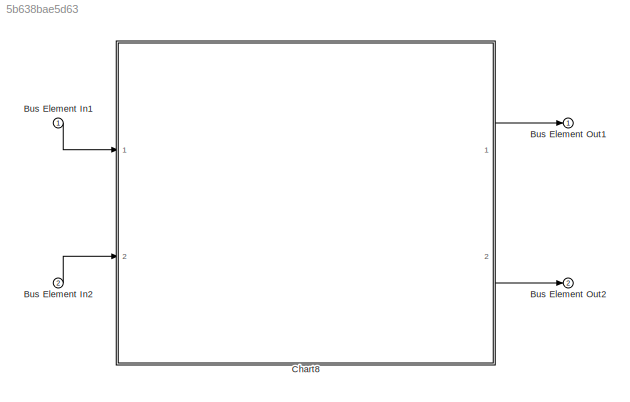
MODEL slx_5b638bae5d63
KIND model
CONFIG AbsTol = auto
CONFIG EnableMultiTasking = off
CONFIG FixedStep = auto
CONFIG MaxStep = auto
CONFIG MinStep = auto
CONFIG RelTol = 1e-3
CONFIG SampleTimeConstraint = Unconstrained
CONFIG Solver = VariableStepAuto
CONFIG SolverName = VariableStepAuto
CONFIG StartTime = 0.0
CONFIG StopTime = 10.0
BLOCK [Inport] Bus Element In1
  IconDisplay = Port number
BLOCK [Inport] Bus Element In2
  IconDisplay = Port number
  Port = 2
BLOCK [Outport] Bus Element Out1
  IconDisplay = Port number
BLOCK [Outport] Bus Element Out2
  IconDisplay = Port number
  Port = 2
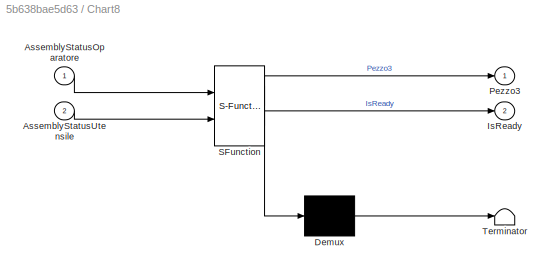
BLOCK [SubSystem] Chart8
  BlockKeywords = __PRM__SERIALIZED__DATA__:Stateflow Chart,Stateflow Diagram
  ErrorFcn = Stateflow.Translate.translate
  PermitHierarchicalResolution = ExplicitOnly
  Ports = [2, 2]
  RequestExecContextInheritance = off
  SFBlockType = Chart
  TreatAsAtomicUnit = on
BLOCK [Demux] Chart8/ Demux 
  Outputs = 1
  Ports = [1, 1]
BLOCK [S-Function] Chart8/ SFunction 
  EnableBusSupport = on
  FunctionName = sf_sfun
  PortCounts = [2 3]
  Ports = [2, 3]
  SFcnIsStateOwnerBlock = off
  SFunctionDeploymentMode = off
  Tag = Stateflow S-Function Assemblaggio 10
BLOCK [Terminator] Chart8/ Terminator 
BLOCK [Inport] Chart8/AssemblyStatusOparatore
  IconDisplay = Port number
BLOCK [Inport] Chart8/AssemblyStatusUtensile
  IconDisplay = Port number
  Port = 2
BLOCK [Outport] Chart8/IsReady
  IconDisplay = Port number
  Port = 2
  VectorParamsAs1DForOutWhenUnconnected = on
BLOCK [Outport] Chart8/Pezzo3
  IconDisplay = Port number
  VectorParamsAs1DForOutWhenUnconnected = on
LINE Bus Element In1:1 -> Chart8:1
LINE Bus Element In2:1 -> Chart8:2
LINE Chart8:1 -> Bus Element Out1:1
LINE Chart8:2 -> Bus Element Out2:1
CHART Chart8 states=1 transitions=1
  STATE_LABEL 'Montage\nif AssemblyStatusOparatore == 1 || AssemblyStatusUtensile == 1\n    IsReady = 1;\n    Pezzo3 = 1;\nend'
